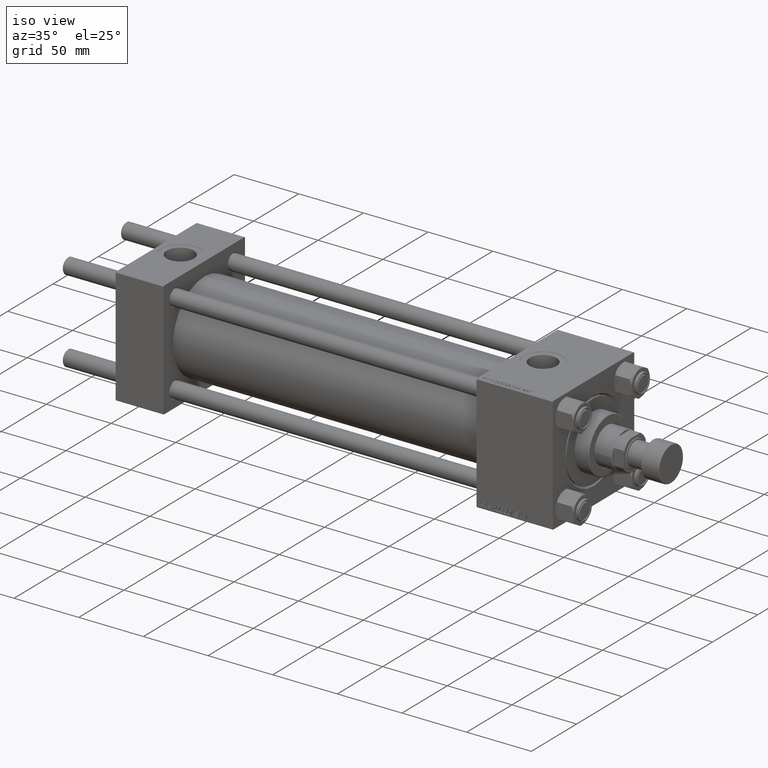
[diagram: clean part render]
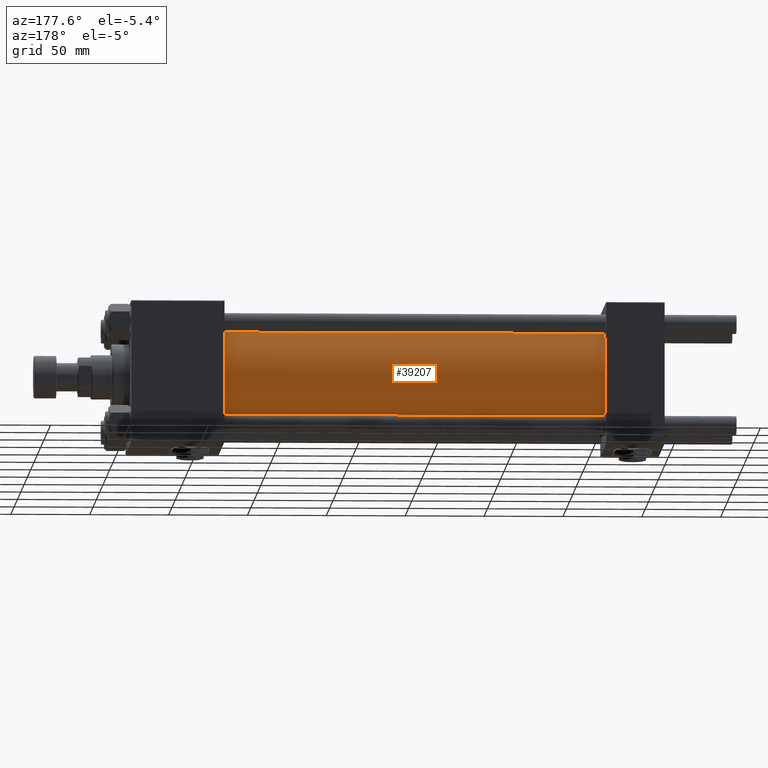
[diagram: tour spotlight — one face highlighted and labeled with its STEP entity id]
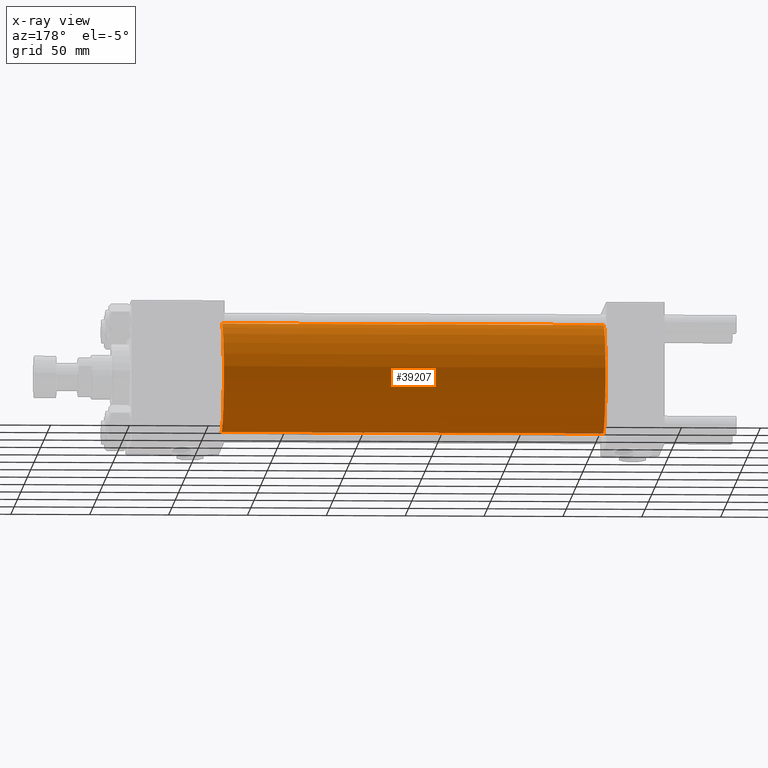
[diagram: x-ray of the same camera — body ghosted, this tour face saturated]
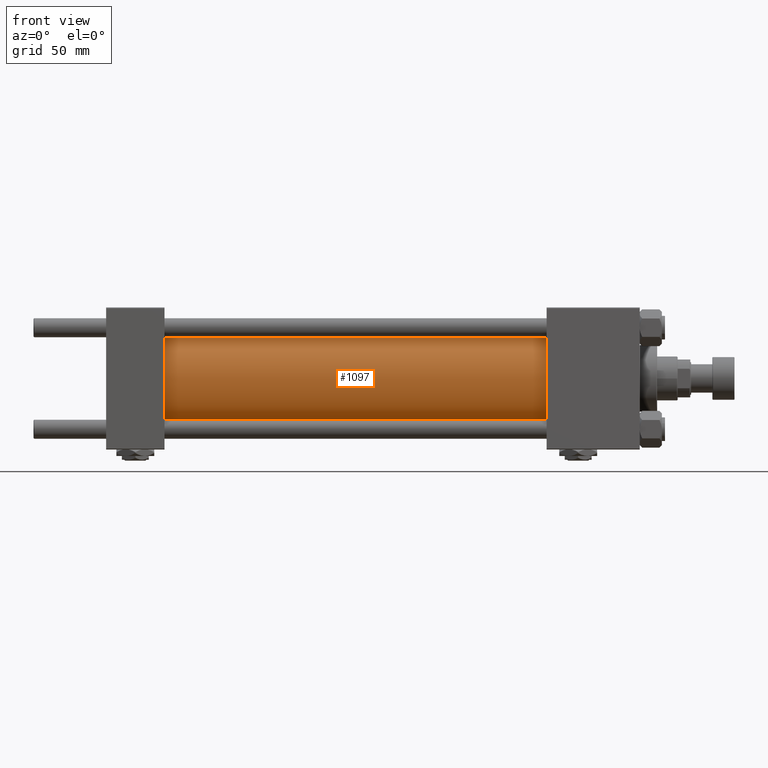
[diagram: tour spotlight — one face highlighted and labeled with its STEP entity id]
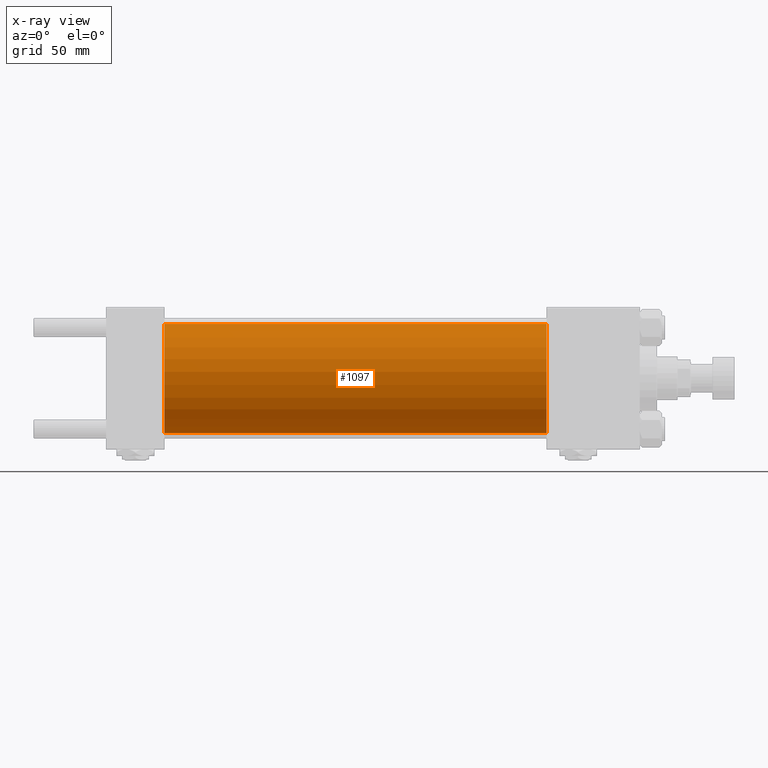
[diagram: x-ray of the same camera — body ghosted, this tour face saturated]
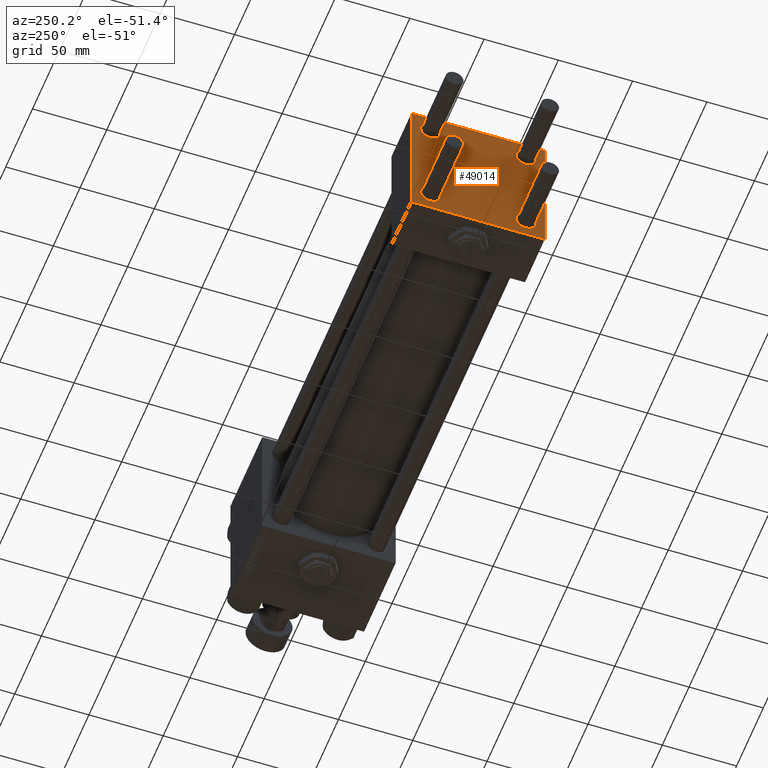
[diagram: tour spotlight — one face highlighted and labeled with its STEP entity id]
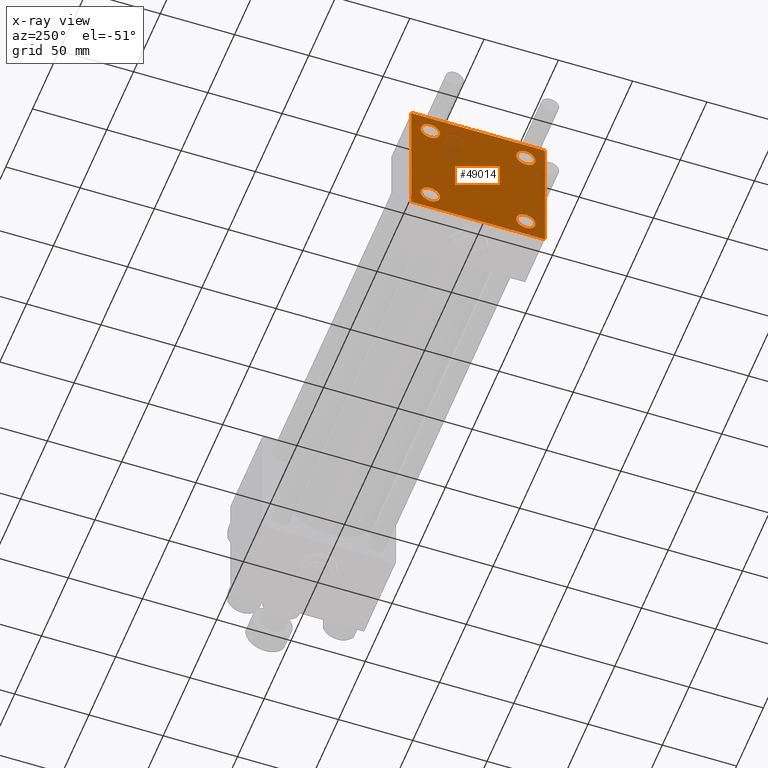
[diagram: x-ray of the same camera — body ghosted, this tour face saturated]
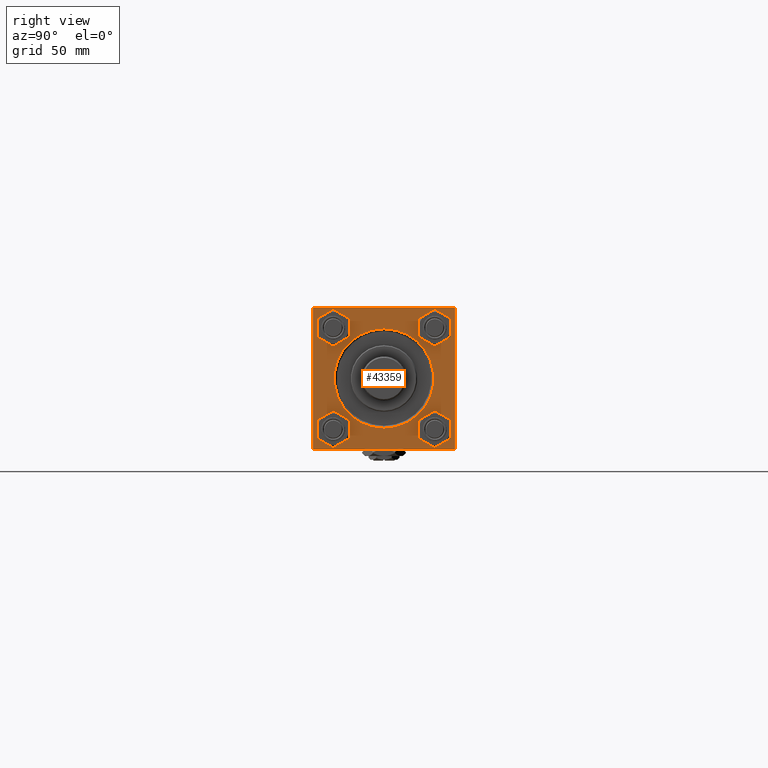
[diagram: tour spotlight — one face highlighted and labeled with its STEP entity id]
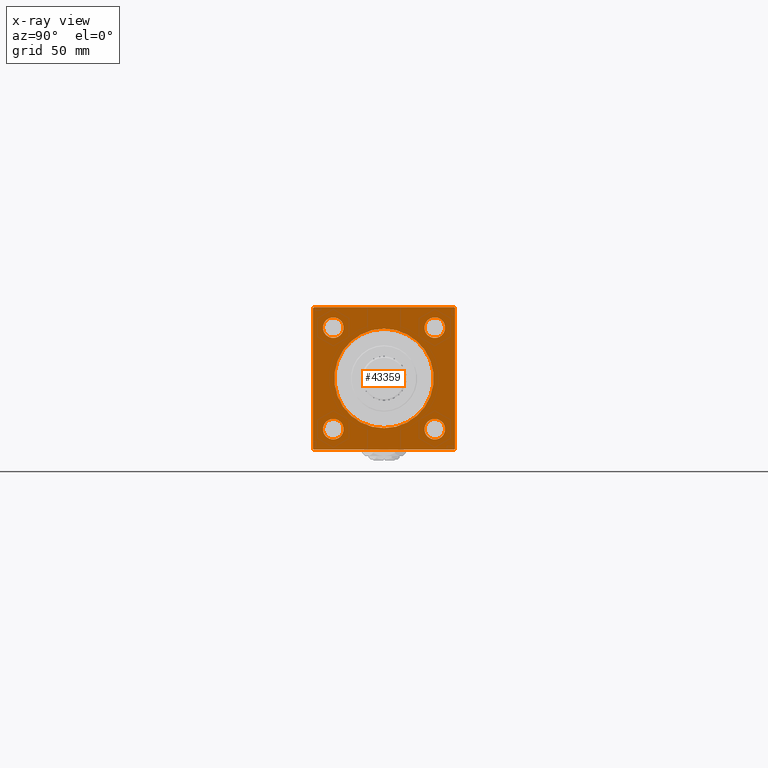
[diagram: x-ray of the same camera — body ghosted, this tour face saturated]
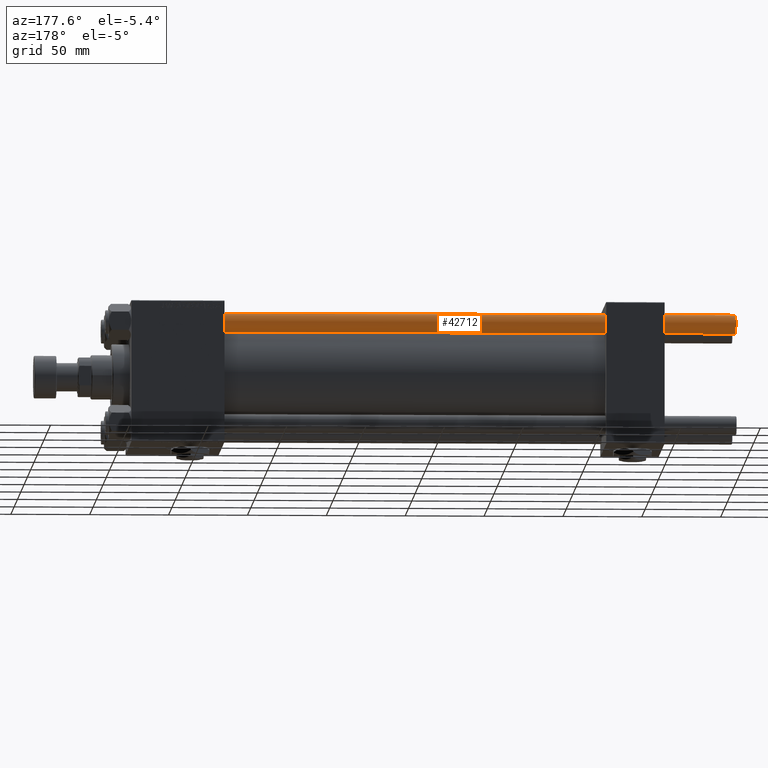
[diagram: tour spotlight — one face highlighted and labeled with its STEP entity id]
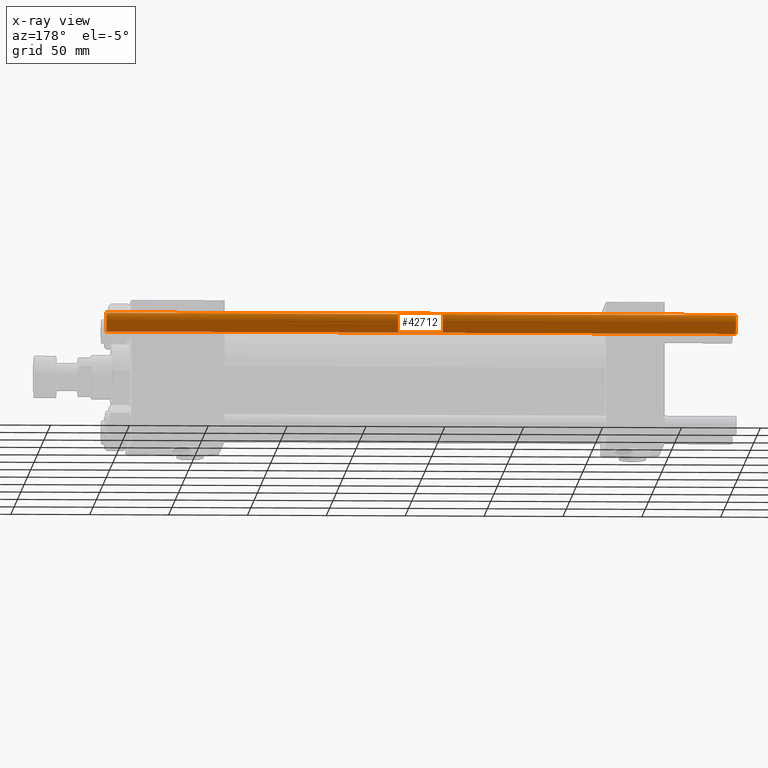
[diagram: x-ray of the same camera — body ghosted, this tour face saturated]
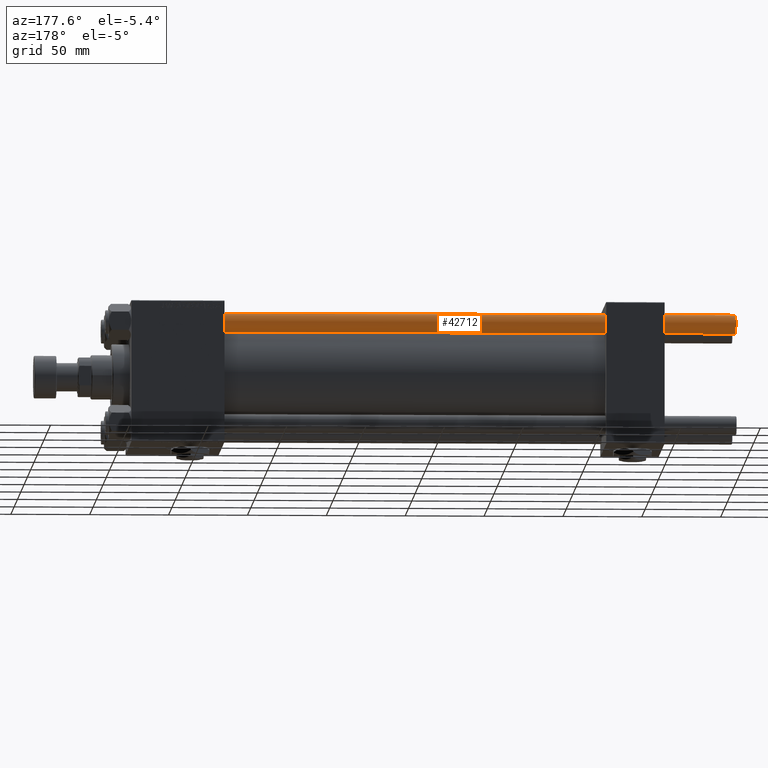
[diagram: tour spotlight — one face highlighted and labeled with its STEP entity id]
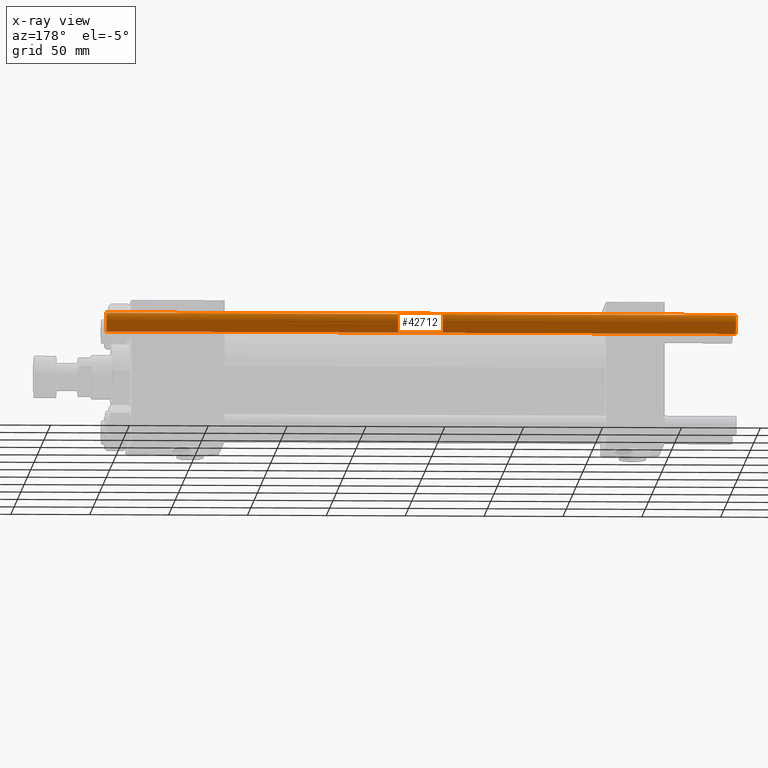
[diagram: x-ray of the same camera — body ghosted, this tour face saturated]
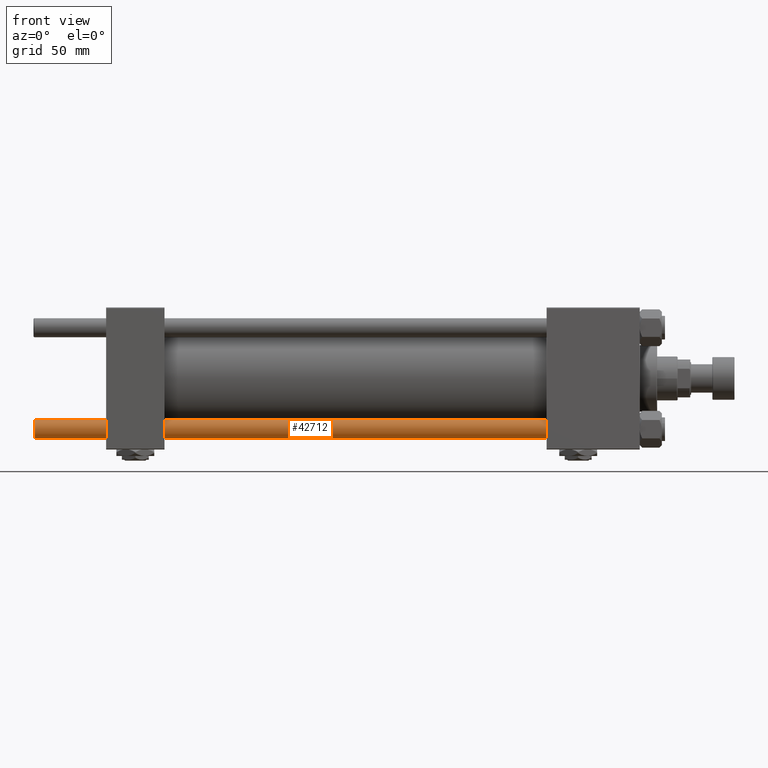
[diagram: tour spotlight — one face highlighted and labeled with its STEP entity id]
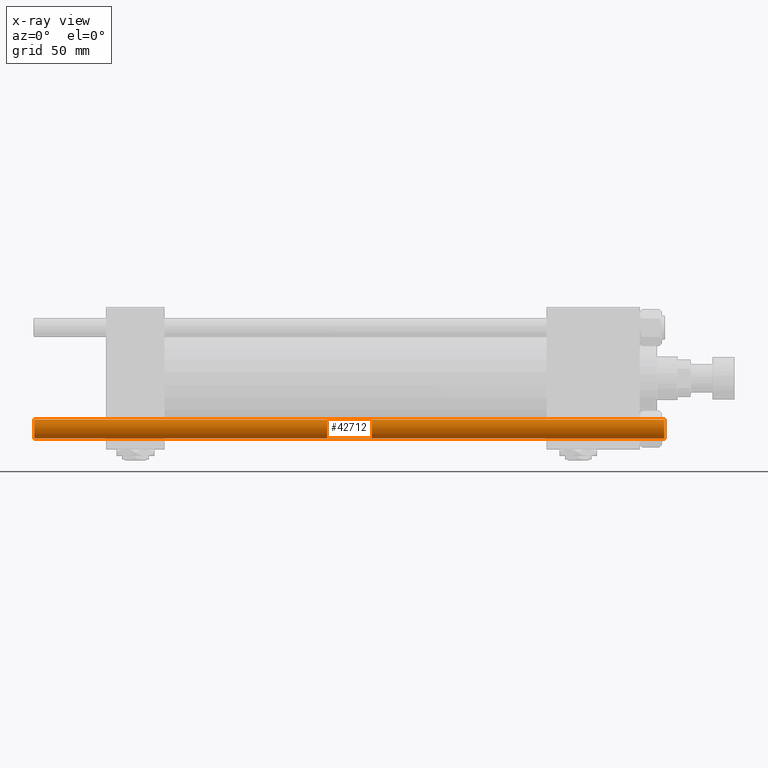
[diagram: x-ray of the same camera — body ghosted, this tour face saturated]
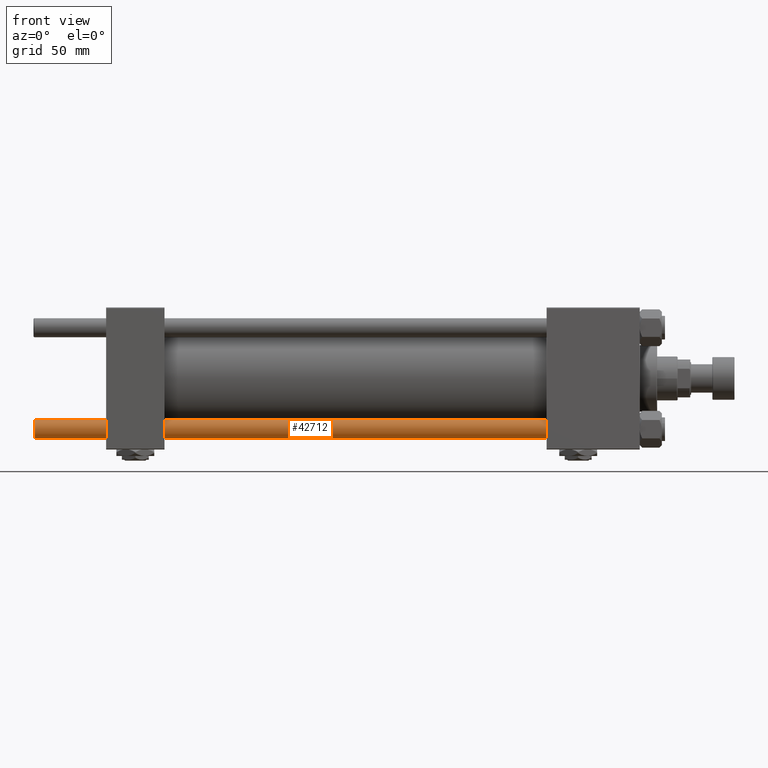
[diagram: tour spotlight — one face highlighted and labeled with its STEP entity id]
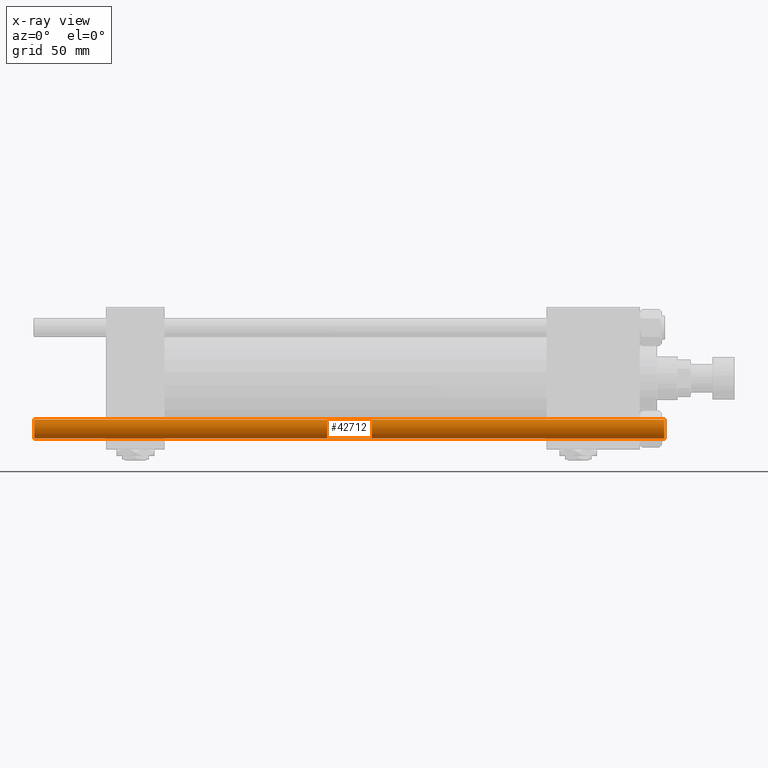
[diagram: x-ray of the same camera — body ghosted, this tour face saturated]
A machine part: a face-by-face anatomy tour. The part has 1247 B-rep faces; the first image is the clean iso view, then the 8 largest visible faces are spotlighted one at a time (largest first), each with its STEP entity span.

Face 1 — auxiliary view, entity #39207. An x-ray twin of the same camera follows (body ghosted, this face saturated) — the face is partly hidden behind the body. In plain terms, the highlighted cylindrical surface (partial cylindrical patch) has radius 34.5 mm, axis along (-1, -0, -0).
Definition (entity closure, byte-faithful):
#1238 = VECTOR ( 'NONE', #6435, 1000.000000000000000 ) ;
#1701 = AXIS2_PLACEMENT_3D ( 'NONE', #14619, #46877, #10649 ) ;
#2493 = VERTEX_POINT ( 'NONE', #27217 ) ;
#4781 = VERTEX_POINT ( 'NONE', #30651 ) ;
#6435 = DIRECTION ( 'NONE',  ( -1.000000000000000000, -0.000000000000000000, -0.000000000000000000 ) ) ;
#7127 = ORIENTED_EDGE ( 'NONE', *, *, #44921, .F. ) ;
#9409 = ORIENTED_EDGE ( 'NONE', *, *, #27478, .F. ) ;
#9705 = VECTOR ( 'NONE', #35653, 1000.000000000000000 ) ;
#10195 = DIRECTION ( 'NONE',  ( 1.000000000000000000, -0.000000000000000000, 0.000000000000000000 ) ) ;
#10649 = DIRECTION ( 'NONE',  ( 0.000000000000000000, 0.000000000000000000, -1.000000000000000000 ) ) ;
#11301 = ORIENTED_EDGE ( 'NONE', *, *, #41979, .T. ) ;
#11334 = CARTESIAN_POINT ( 'NONE',  ( 37.00000000000000711, 4.225031457058367344E-15, -34.49999999999999289 ) ) ;
#12838 = CARTESIAN_POINT ( 'NONE',  ( 278.9999999999999432, 4.225031457058367344E-15, -34.49999999999999289 ) ) ;
#13333 = DIRECTION ( 'NONE',  ( 0.000000000000000000, 0.000000000000000000, 1.000000000000000000 ) ) ;
#14153 = CARTESIAN_POINT ( 'NONE',  ( 37.00000000000000711, 0.000000000000000000, 0.000000000000000000 ) ) ;
#14619 = CARTESIAN_POINT ( 'NONE',  ( 278.9999999999999432, 0.000000000000000000, 0.000000000000000000 ) ) ;
#15557 = CARTESIAN_POINT ( 'NONE',  ( 278.9999999999999432, 4.225031457058367344E-15, -34.49999999999999289 ) ) ;
#18596 = CIRCLE ( 'NONE', #1701, 34.49999999999999289 ) ;
#18634 = LINE ( 'NONE', #37945, #1238 ) ;
#22575 = FACE_OUTER_BOUND ( 'NONE', #31577, .T. ) ;
#22686 = VERTEX_POINT ( 'NONE', #11334 ) ;
#27191 = CIRCLE ( 'NONE', #39014, 34.49999999999999289 ) ;
#27217 = CARTESIAN_POINT ( 'NONE',  ( 37.00000000000000711, 0.000000000000000000, 34.49999999999999289 ) ) ;
#27478 = EDGE_CURVE ( 'NONE', #42775, #4781, #18596, .T. ) ;
#30651 = CARTESIAN_POINT ( 'NONE',  ( 278.9999999999999432, 0.000000000000000000, 34.49999999999999289 ) ) ;
#31577 = EDGE_LOOP ( 'NONE', ( #9409, #11301, #32504, #7127 ) ) ;
#32417 = AXIS2_PLACEMENT_3D ( 'NONE', #33435, #49567, #13333 ) ;
#32504 = ORIENTED_EDGE ( 'NONE', *, *, #33988, .T. ) ;
#33435 = CARTESIAN_POINT ( 'NONE',  ( 278.9999999999999432, 0.000000000000000000, 0.000000000000000000 ) ) ;
#33988 = EDGE_CURVE ( 'NONE', #22686, #2493, #27191, .T. ) ;
#35653 = DIRECTION ( 'NONE',  ( -1.000000000000000000, -0.000000000000000000, -0.000000000000000000 ) ) ;
#37945 = CARTESIAN_POINT ( 'NONE',  ( 278.9999999999999432, 0.000000000000000000, 34.49999999999999289 ) ) ;
#38239 = DIRECTION ( 'NONE',  ( 0.000000000000000000, 0.000000000000000000, 1.000000000000000000 ) ) ;
#38708 = CYLINDRICAL_SURFACE ( 'NONE', #32417, 34.49999999999999289 ) ;
#39014 = AXIS2_PLACEMENT_3D ( 'NONE', #14153, #10195, #38239 ) ;
#39207 = ADVANCED_FACE ( 'NONE', ( #22575 ), #38708, .T. ) ;
#41979 = EDGE_CURVE ( 'NONE', #42775, #22686, #44123, .T. ) ;
#42775 = VERTEX_POINT ( 'NONE', #12838 ) ;
#44123 = LINE ( 'NONE', #15557, #9705 ) ;
#44921 = EDGE_CURVE ( 'NONE', #4781, #2493, #18634, .T. ) ;
#46877 = DIRECTION ( 'NONE',  ( 1.000000000000000000, 0.000000000000000000, 0.000000000000000000 ) ) ;
#49567 = DIRECTION ( 'NONE',  ( -1.000000000000000000, -0.000000000000000000, -0.000000000000000000 ) ) ;

Face 2 — front view, entity #1097. An x-ray twin of the same camera follows (body ghosted, this face saturated) — the face is partly hidden behind the body. In plain terms, the highlighted cylindrical surface (partial cylindrical patch) has radius 34.5 mm, axis along (-1, -0, -0).
Definition (entity closure, byte-faithful):
#1097 = ADVANCED_FACE ( 'NONE', ( #32298 ), #11948, .T. ) ;
#1238 = VECTOR ( 'NONE', #6435, 1000.000000000000000 ) ;
#1397 = CARTESIAN_POINT ( 'NONE',  ( 278.9999999999999432, 0.000000000000000000, 0.000000000000000000 ) ) ;
#2493 = VERTEX_POINT ( 'NONE', #27217 ) ;
#4781 = VERTEX_POINT ( 'NONE', #30651 ) ;
#5101 = DIRECTION ( 'NONE',  ( 1.000000000000000000, 0.000000000000000000, 0.000000000000000000 ) ) ;
#6435 = DIRECTION ( 'NONE',  ( -1.000000000000000000, -0.000000000000000000, -0.000000000000000000 ) ) ;
#9705 = VECTOR ( 'NONE', #35653, 1000.000000000000000 ) ;
#11334 = CARTESIAN_POINT ( 'NONE',  ( 37.00000000000000711, 4.225031457058367344E-15, -34.49999999999999289 ) ) ;
#11948 = CYLINDRICAL_SURFACE ( 'NONE', #27611, 34.49999999999999289 ) ;
#12838 = CARTESIAN_POINT ( 'NONE',  ( 278.9999999999999432, 4.225031457058367344E-15, -34.49999999999999289 ) ) ;
#13193 = EDGE_LOOP ( 'NONE', ( #51564, #16017, #51221, #27031 ) ) ;
#14505 = AXIS2_PLACEMENT_3D ( 'NONE', #49873, #37719, #21845 ) ;
#15557 = CARTESIAN_POINT ( 'NONE',  ( 278.9999999999999432, 4.225031457058367344E-15, -34.49999999999999289 ) ) ;
#16017 = ORIENTED_EDGE ( 'NONE', *, *, #31632, .F. ) ;
#17555 = DIRECTION ( 'NONE',  ( 0.000000000000000000, 0.000000000000000000, -1.000000000000000000 ) ) ;
#17767 = AXIS2_PLACEMENT_3D ( 'NONE', #1397, #5101, #17555 ) ;
#18634 = LINE ( 'NONE', #37945, #1238 ) ;
#21845 = DIRECTION ( 'NONE',  ( 0.000000000000000000, 0.000000000000000000, 1.000000000000000000 ) ) ;
#22686 = VERTEX_POINT ( 'NONE', #11334 ) ;
#27031 = ORIENTED_EDGE ( 'NONE', *, *, #34015, .T. ) ;
#27217 = CARTESIAN_POINT ( 'NONE',  ( 37.00000000000000711, 0.000000000000000000, 34.49999999999999289 ) ) ;
#27611 = AXIS2_PLACEMENT_3D ( 'NONE', #28866, #44228, #41031 ) ;
#28866 = CARTESIAN_POINT ( 'NONE',  ( 278.9999999999999432, 0.000000000000000000, 0.000000000000000000 ) ) ;
#30651 = CARTESIAN_POINT ( 'NONE',  ( 278.9999999999999432, 0.000000000000000000, 34.49999999999999289 ) ) ;
#31632 = EDGE_CURVE ( 'NONE', #4781, #42775, #40555, .T. ) ;
#32298 = FACE_OUTER_BOUND ( 'NONE', #13193, .T. ) ;
#34015 = EDGE_CURVE ( 'NONE', #2493, #22686, #37314, .T. ) ;
#35653 = DIRECTION ( 'NONE',  ( -1.000000000000000000, -0.000000000000000000, -0.000000000000000000 ) ) ;
#37314 = CIRCLE ( 'NONE', #14505, 34.49999999999999289 ) ;
#37719 = DIRECTION ( 'NONE',  ( 1.000000000000000000, -0.000000000000000000, 0.000000000000000000 ) ) ;
#37945 = CARTESIAN_POINT ( 'NONE',  ( 278.9999999999999432, 0.000000000000000000, 34.49999999999999289 ) ) ;
#40555 = CIRCLE ( 'NONE', #17767, 34.49999999999999289 ) ;
#41031 = DIRECTION ( 'NONE',  ( 0.000000000000000000, 0.000000000000000000, 1.000000000000000000 ) ) ;
#41979 = EDGE_CURVE ( 'NONE', #42775, #22686, #44123, .T. ) ;
#42775 = VERTEX_POINT ( 'NONE', #12838 ) ;
#44123 = LINE ( 'NONE', #15557, #9705 ) ;
#44228 = DIRECTION ( 'NONE',  ( -1.000000000000000000, -0.000000000000000000, -0.000000000000000000 ) ) ;
#44921 = EDGE_CURVE ( 'NONE', #4781, #2493, #18634, .T. ) ;
#49873 = CARTESIAN_POINT ( 'NONE',  ( 37.00000000000000711, 0.000000000000000000, 0.000000000000000000 ) ) ;
#51221 = ORIENTED_EDGE ( 'NONE', *, *, #44921, .T. ) ;
#51564 = ORIENTED_EDGE ( 'NONE', *, *, #41979, .F. ) ;

Face 3 — auxiliary view, entity #49014. An x-ray twin of the same camera follows (body ghosted, this face saturated) — the face is partly hidden behind the body. In plain terms, the highlighted planar face has unit normal (-1, 0, 0).
Definition (entity closure, byte-faithful):
#23 = CARTESIAN_POINT ( 'NONE',  ( 0.000000000000000000, 32.14999999999999147, -32.15000000000000568 ) ) ;
#322 = AXIS2_PLACEMENT_3D ( 'NONE', #24328, #40461, #770 ) ;
#585 = ORIENTED_EDGE ( 'NONE', *, *, #8878, .T. ) ;
#770 = DIRECTION ( 'NONE',  ( 0.000000000000000000, 0.000000000000000000, 1.000000000000000000 ) ) ;
#1209 = DIRECTION ( 'NONE',  ( 0.000000000000000000, 0.000000000000000000, 1.000000000000000000 ) ) ;
#1324 = EDGE_CURVE ( 'NONE', #40940, #44435, #34386, .T. ) ;
#1410 = VERTEX_POINT ( 'NONE', #41726 ) ;
#1665 = LINE ( 'NONE', #34721, #40408 ) ;
#1736 = LINE ( 'NONE', #17894, #41706 ) ;
#2751 = LINE ( 'NONE', #22871, #35495 ) ;
#2802 = AXIS2_PLACEMENT_3D ( 'NONE', #23656, #39789, #23134 ) ;
#2902 = ORIENTED_EDGE ( 'NONE', *, *, #27610, .T. ) ;
#3375 = EDGE_CURVE ( 'NONE', #31960, #24763, #33337, .T. ) ;
#3716 = DIRECTION ( 'NONE',  ( 1.000000000000000000, -0.000000000000000000, 0.000000000000000000 ) ) ;
#4031 = CIRCLE ( 'NONE', #33610, 6.500000000000019540 ) ;
#4152 = CARTESIAN_POINT ( 'NONE',  ( 0.000000000000000000, -44.49999999999995737, -45.00000000000000000 ) ) ;
#4788 = CIRCLE ( 'NONE', #34360, 6.499999999999977796 ) ;
#4977 = CARTESIAN_POINT ( 'NONE',  ( 0.000000000000000000, 44.74999999999999289, 44.74999999999999289 ) ) ;
#5029 = DIRECTION ( 'NONE',  ( 0.000000000000000000, -1.000000000000000000, -1.541976423090495633E-16 ) ) ;
#5430 = DIRECTION ( 'NONE',  ( 1.000000000000000000, -0.000000000000000000, 0.000000000000000000 ) ) ;
#5577 = EDGE_LOOP ( 'NONE', ( #41072, #25094 ) ) ;
#5890 = DIRECTION ( 'NONE',  ( 1.000000000000000000, -0.000000000000000000, 0.000000000000000000 ) ) ;
#6821 = AXIS2_PLACEMENT_3D ( 'NONE', #23, #16180, #32293 ) ;
#7508 = FACE_OUTER_BOUND ( 'NONE', #32414, .T. ) ;
#7723 = CARTESIAN_POINT ( 'NONE',  ( 0.000000000000000000, -45.00000000000000000, -44.49999999999995737 ) ) ;
#8689 = CARTESIAN_POINT ( 'NONE',  ( 0.000000000000000000, 44.49999999999998579, 45.00000000000001421 ) ) ;
#8878 = EDGE_CURVE ( 'NONE', #48772, #19378, #1665, .T. ) ;
#8956 = EDGE_CURVE ( 'NONE', #16682, #32680, #10017, .T. ) ;
#9024 = CARTESIAN_POINT ( 'NONE',  ( -0.000000000000000000, -44.75000000000029843, 44.74999999999967315 ) ) ;
#9371 = CIRCLE ( 'NONE', #6821, 6.499999999999977796 ) ;
#9758 = DIRECTION ( 'NONE',  ( -0.000000000000000000, -0.7071067811865474617, -0.7071067811865474617 ) ) ;
#10017 = CIRCLE ( 'NONE', #42149, 6.499999999999977796 ) ;
#10515 = VECTOR ( 'NONE', #37266, 1000.000000000000114 ) ;
#10971 = CARTESIAN_POINT ( 'NONE',  ( 0.000000000000000000, 44.99999999999998579, -44.49999999999995737 ) ) ;
#11121 = ORIENTED_EDGE ( 'NONE', *, *, #47633, .T. ) ;
#11231 = PLANE ( 'NONE',  #2802 ) ;
#12229 = CARTESIAN_POINT ( 'NONE',  ( 0.000000000000000000, -32.14999999999997726, -38.64999999999999147 ) ) ;
#12448 = ORIENTED_EDGE ( 'NONE', *, *, #19070, .T. ) ;
#12656 = VECTOR ( 'NONE', #27563, 1000.000000000000114 ) ;
#12905 = VERTEX_POINT ( 'NONE', #42650 ) ;
#13901 = DIRECTION ( 'NONE',  ( 0.000000000000000000, 0.000000000000000000, 1.000000000000000000 ) ) ;
#14676 = FACE_BOUND ( 'NONE', #16792, .T. ) ;
#15014 = DIRECTION ( 'NONE',  ( 0.000000000000000000, 0.000000000000000000, 1.000000000000000000 ) ) ;
#15041 = CARTESIAN_POINT ( 'NONE',  ( 0.000000000000000000, -32.14999999999997726, 32.15000000000001279 ) ) ;
#15240 = EDGE_CURVE ( 'NONE', #35460, #34101, #20368, .T. ) ;
#15352 = VERTEX_POINT ( 'NONE', #45059 ) ;
#16180 = DIRECTION ( 'NONE',  ( 1.000000000000000000, -0.000000000000000000, 0.000000000000000000 ) ) ;
#16682 = VERTEX_POINT ( 'NONE', #41764 ) ;
#16695 = EDGE_CURVE ( 'NONE', #19378, #31960, #21154, .T. ) ;
#16792 = EDGE_LOOP ( 'NONE', ( #12448, #52126 ) ) ;
#17884 = CARTESIAN_POINT ( 'NONE',  ( 0.000000000000000000, -32.14999999999997726, -32.15000000000001279 ) ) ;
#17894 = CARTESIAN_POINT ( 'NONE',  ( 0.000000000000000000, 44.99999999999998579, 45.00000000000001421 ) ) ;
#18569 = EDGE_LOOP ( 'NONE', ( #20387, #27068 ) ) ;
#18652 = DIRECTION ( 'NONE',  ( 0.000000000000000000, 7.709882115452476934E-17, -1.000000000000000000 ) ) ;
#18867 = CARTESIAN_POINT ( 'NONE',  ( 0.000000000000000000, 32.14999999999999147, 32.15000000000000568 ) ) ;
#18942 = VERTEX_POINT ( 'NONE', #8689 ) ;
#19070 = EDGE_CURVE ( 'NONE', #32680, #16682, #4788, .T. ) ;
#19378 = VERTEX_POINT ( 'NONE', #10971 ) ;
#19544 = DIRECTION ( 'NONE',  ( 1.000000000000000000, -0.000000000000000000, 0.000000000000000000 ) ) ;
#20368 = CIRCLE ( 'NONE', #25458, 6.499999999999977796 ) ;
#20387 = ORIENTED_EDGE ( 'NONE', *, *, #21863, .T. ) ;
#21154 = LINE ( 'NONE', #38323, #26357 ) ;
#21280 = AXIS2_PLACEMENT_3D ( 'NONE', #17884, #5430, #13901 ) ;
#21863 = EDGE_CURVE ( 'NONE', #15352, #39930, #4031, .T. ) ;
#22871 = CARTESIAN_POINT ( 'NONE',  ( 0.000000000000000000, -45.00000000000000711, 45.00000000000000000 ) ) ;
#23055 = CIRCLE ( 'NONE', #33995, 6.499999999999977796 ) ;
#23134 = DIRECTION ( 'NONE',  ( -0.000000000000000000, 0.000000000000000000, 1.000000000000000000 ) ) ;
#23578 = CARTESIAN_POINT ( 'NONE',  ( 0.000000000000000000, 32.14999999999999147, -32.15000000000000568 ) ) ;
#23656 = CARTESIAN_POINT ( 'NONE',  ( 0.000000000000000000, 0.000000000000000000, 0.000000000000000000 ) ) ;
#24328 = CARTESIAN_POINT ( 'NONE',  ( 0.000000000000000000, -32.14999999999997726, 32.15000000000001279 ) ) ;
#24353 = ORIENTED_EDGE ( 'NONE', *, *, #1324, .T. ) ;
#24763 = VERTEX_POINT ( 'NONE', #4152 ) ;
#25084 = VECTOR ( 'NONE', #25156, 1000.000000000000114 ) ;
#25094 = ORIENTED_EDGE ( 'NONE', *, *, #15240, .T. ) ;
#25156 = DIRECTION ( 'NONE',  ( -0.000000000000000000, 0.7071067811865425767, 0.7071067811865524577 ) ) ;
#25359 = ORIENTED_EDGE ( 'NONE', *, *, #3375, .T. ) ;
#25458 = AXIS2_PLACEMENT_3D ( 'NONE', #29766, #42717, #1209 ) ;
#25665 = CARTESIAN_POINT ( 'NONE',  ( 0.000000000000000000, 44.99999999999998579, -44.99999999999998579 ) ) ;
#26004 = DIRECTION ( 'NONE',  ( 0.000000000000000000, 0.000000000000000000, 1.000000000000000000 ) ) ;
#26357 = VECTOR ( 'NONE', #9758, 1000.000000000000114 ) ;
#26573 = FACE_BOUND ( 'NONE', #5577, .T. ) ;
#27068 = ORIENTED_EDGE ( 'NONE', *, *, #39774, .T. ) ;
#27128 = CARTESIAN_POINT ( 'NONE',  ( 0.000000000000000000, -45.00000000000000711, 44.49999999999997158 ) ) ;
#27175 = CARTESIAN_POINT ( 'NONE',  ( 0.000000000000000000, 32.14999999999999147, 32.15000000000000568 ) ) ;
#27563 = DIRECTION ( 'NONE',  ( 0.000000000000000000, -0.7071067811865474617, 0.7071067811865474617 ) ) ;
#27610 = EDGE_CURVE ( 'NONE', #24763, #28541, #51359, .T. ) ;
#27805 = DIRECTION ( 'NONE',  ( 0.000000000000000000, 0.000000000000000000, 1.000000000000000000 ) ) ;
#28541 = VERTEX_POINT ( 'NONE', #7723 ) ;
#28672 = ORIENTED_EDGE ( 'NONE', *, *, #16695, .T. ) ;
#29766 = CARTESIAN_POINT ( 'NONE',  ( 0.000000000000000000, -32.14999999999997726, -32.15000000000001279 ) ) ;
#31256 = CARTESIAN_POINT ( 'NONE',  ( 0.000000000000000000, -44.74999999999998579, -44.74999999999998579 ) ) ;
#31368 = EDGE_CURVE ( 'NONE', #40940, #28541, #2751, .T. ) ;
#31387 = DIRECTION ( 'NONE',  ( 1.000000000000000000, -0.000000000000000000, 0.000000000000000000 ) ) ;
#31599 = ORIENTED_EDGE ( 'NONE', *, *, #31368, .F. ) ;
#31860 = EDGE_CURVE ( 'NONE', #12905, #1410, #9371, .T. ) ;
#31960 = VERTEX_POINT ( 'NONE', #41810 ) ;
#32293 = DIRECTION ( 'NONE',  ( 0.000000000000000000, 0.000000000000000000, 1.000000000000000000 ) ) ;
#32414 = EDGE_LOOP ( 'NONE', ( #585, #28672, #25359, #2902, #31599, #24353, #48103, #48736 ) ) ;
#32680 = VERTEX_POINT ( 'NONE', #41206 ) ;
#33337 = LINE ( 'NONE', #25665, #47084 ) ;
#33610 = AXIS2_PLACEMENT_3D ( 'NONE', #15041, #19544, #43341 ) ;
#33976 = EDGE_CURVE ( 'NONE', #34101, #35460, #51652, .T. ) ;
#33995 = AXIS2_PLACEMENT_3D ( 'NONE', #23578, #3716, #27805 ) ;
#34101 = VERTEX_POINT ( 'NONE', #46939 ) ;
#34360 = AXIS2_PLACEMENT_3D ( 'NONE', #27175, #31387, #15014 ) ;
#34386 = LINE ( 'NONE', #9024, #25084 ) ;
#34721 = CARTESIAN_POINT ( 'NONE',  ( 0.000000000000000000, 44.99999999999998579, 45.00000000000001421 ) ) ;
#35035 = FACE_BOUND ( 'NONE', #42009, .T. ) ;
#35460 = VERTEX_POINT ( 'NONE', #12229 ) ;
#35495 = VECTOR ( 'NONE', #18652, 1000.000000000000000 ) ;
#37266 = DIRECTION ( 'NONE',  ( 0.000000000000000000, 0.7071067811865474617, -0.7071067811865474617 ) ) ;
#38323 = CARTESIAN_POINT ( 'NONE',  ( 0.000000000000000000, 44.74999999999998579, -44.74999999999998579 ) ) ;
#39403 = CARTESIAN_POINT ( 'NONE',  ( 0.000000000000000000, 44.99999999999998579, 44.50000000000001421 ) ) ;
#39774 = EDGE_CURVE ( 'NONE', #39930, #15352, #50174, .T. ) ;
#39789 = DIRECTION ( 'NONE',  ( -1.000000000000000000, 0.000000000000000000, -0.000000000000000000 ) ) ;
#39930 = VERTEX_POINT ( 'NONE', #44375 ) ;
#40408 = VECTOR ( 'NONE', #51109, 1000.000000000000000 ) ;
#40461 = DIRECTION ( 'NONE',  ( 1.000000000000000000, -0.000000000000000000, 0.000000000000000000 ) ) ;
#40940 = VERTEX_POINT ( 'NONE', #27128 ) ;
#41072 = ORIENTED_EDGE ( 'NONE', *, *, #33976, .T. ) ;
#41206 = CARTESIAN_POINT ( 'NONE',  ( 0.000000000000000000, 32.14999999999999147, 38.64999999999999147 ) ) ;
#41706 = VECTOR ( 'NONE', #41952, 1000.000000000000000 ) ;
#41726 = CARTESIAN_POINT ( 'NONE',  ( 0.000000000000000000, 32.14999999999999147, -38.64999999999998437 ) ) ;
#41764 = CARTESIAN_POINT ( 'NONE',  ( 0.000000000000000000, 32.14999999999999147, 25.65000000000002700 ) ) ;
#41810 = CARTESIAN_POINT ( 'NONE',  ( 0.000000000000000000, 44.49999999999998579, -44.99999999999998579 ) ) ;
#41952 = DIRECTION ( 'NONE',  ( 0.000000000000000000, -1.000000000000000000, -1.541976423090495387E-16 ) ) ;
#42009 = EDGE_LOOP ( 'NONE', ( #51547, #11121 ) ) ;
#42149 = AXIS2_PLACEMENT_3D ( 'NONE', #18867, #5890, #26004 ) ;
#42650 = CARTESIAN_POINT ( 'NONE',  ( 0.000000000000000000, 32.14999999999999147, -25.65000000000002700 ) ) ;
#42717 = DIRECTION ( 'NONE',  ( 1.000000000000000000, -0.000000000000000000, 0.000000000000000000 ) ) ;
#43341 = DIRECTION ( 'NONE',  ( 0.000000000000000000, 0.000000000000000000, 1.000000000000000000 ) ) ;
#44375 = CARTESIAN_POINT ( 'NONE',  ( 0.000000000000000000, -32.14999999999997726, 25.64999999999999147 ) ) ;
#44435 = VERTEX_POINT ( 'NONE', #48667 ) ;
#45059 = CARTESIAN_POINT ( 'NONE',  ( 0.000000000000000000, -32.14999999999997726, 38.65000000000003411 ) ) ;
#45980 = LINE ( 'NONE', #4977, #10515 ) ;
#46939 = CARTESIAN_POINT ( 'NONE',  ( 0.000000000000000000, -32.14999999999997726, -25.65000000000003411 ) ) ;
#47084 = VECTOR ( 'NONE', #5029, 1000.000000000000000 ) ;
#47452 = FACE_BOUND ( 'NONE', #18569, .T. ) ;
#47633 = EDGE_CURVE ( 'NONE', #1410, #12905, #23055, .T. ) ;
#48103 = ORIENTED_EDGE ( 'NONE', *, *, #50228, .F. ) ;
#48667 = CARTESIAN_POINT ( 'NONE',  ( 0.000000000000000000, -44.49999999999995737, 45.00000000000000000 ) ) ;
#48736 = ORIENTED_EDGE ( 'NONE', *, *, #52325, .T. ) ;
#48772 = VERTEX_POINT ( 'NONE', #39403 ) ;
#49014 = ADVANCED_FACE ( 'NONE', ( #47452, #26573, #35035, #14676, #7508 ), #11231, .T. ) ;
#50174 = CIRCLE ( 'NONE', #322, 6.500000000000019540 ) ;
#50228 = EDGE_CURVE ( 'NONE', #18942, #44435, #1736, .T. ) ;
#51109 = DIRECTION ( 'NONE',  ( 0.000000000000000000, 0.000000000000000000, -1.000000000000000000 ) ) ;
#51359 = LINE ( 'NONE', #31256, #12656 ) ;
#51547 = ORIENTED_EDGE ( 'NONE', *, *, #31860, .T. ) ;
#51652 = CIRCLE ( 'NONE', #21280, 6.499999999999977796 ) ;
#52126 = ORIENTED_EDGE ( 'NONE', *, *, #8956, .T. ) ;
#52325 = EDGE_CURVE ( 'NONE', #18942, #48772, #45980, .T. ) ;

Face 4 — right view, entity #43359. An x-ray twin of the same camera follows (body ghosted, this face saturated) — the face is partly hidden behind the body. In plain terms, the highlighted planar face has unit normal (-1, 0, 0).
Definition (entity closure, byte-faithful):
#194 = VECTOR ( 'NONE', #12519, 999.9999999999998863 ) ;
#378 = ORIENTED_EDGE ( 'NONE', *, *, #28123, .T. ) ;
#1820 = FACE_BOUND ( 'NONE', #40671, .T. ) ;
#2013 = CIRCLE ( 'NONE', #7946, 6.500000000000005329 ) ;
#2173 = VERTEX_POINT ( 'NONE', #14329 ) ;
#2364 = CARTESIAN_POINT ( 'NONE',  ( 337.9999999999999432, -45.00000000000000000, 44.99999999999998579 ) ) ;
#2375 = ORIENTED_EDGE ( 'NONE', *, *, #41245, .T. ) ;
#2411 = VERTEX_POINT ( 'NONE', #5541 ) ;
#2546 = EDGE_CURVE ( 'NONE', #2411, #46498, #47311, .T. ) ;
#3049 = DIRECTION ( 'NONE',  ( -0.000000000000000000, 0.7071067811865474617, 0.7071067811865474617 ) ) ;
#3152 = EDGE_LOOP ( 'NONE', ( #2375, #42779 ) ) ;
#3738 = VECTOR ( 'NONE', #9220, 1000.000000000000000 ) ;
#4073 = VECTOR ( 'NONE', #48211, 1000.000000000000000 ) ;
#4167 = CARTESIAN_POINT ( 'NONE',  ( 337.9999999999999432, 32.14999999999999147, 32.15000000000000568 ) ) ;
#4264 = CARTESIAN_POINT ( 'NONE',  ( 337.9999999999999432, 44.49999999999995737, 45.00000000000000000 ) ) ;
#4555 = VERTEX_POINT ( 'NONE', #12196 ) ;
#4703 = CARTESIAN_POINT ( 'NONE',  ( 337.9999999999999432, 0.000000000000000000, 0.000000000000000000 ) ) ;
#4871 = ORIENTED_EDGE ( 'NONE', *, *, #5393, .T. ) ;
#5245 = CARTESIAN_POINT ( 'NONE',  ( 337.9999999999999432, 45.00000000000001421, 45.00000000000000000 ) ) ;
#5393 = EDGE_CURVE ( 'NONE', #38431, #38661, #51033, .T. ) ;
#5428 = CARTESIAN_POINT ( 'NONE',  ( 337.9999999999999432, -45.00000000000000000, 44.49999999999998579 ) ) ;
#5541 = CARTESIAN_POINT ( 'NONE',  ( 337.9999999999999432, 45.00000000000001421, 44.49999999999994316 ) ) ;
#6174 = CARTESIAN_POINT ( 'NONE',  ( 337.9999999999999432, 32.14999999999999147, 38.65000000000001990 ) ) ;
#6321 = DIRECTION ( 'NONE',  ( 0.000000000000000000, 0.000000000000000000, 1.000000000000000000 ) ) ;
#7125 = EDGE_CURVE ( 'NONE', #50310, #4555, #21918, .T. ) ;
#7181 = EDGE_CURVE ( 'NONE', #23772, #48898, #43055, .T. ) ;
#7744 = LINE ( 'NONE', #16217, #4073 ) ;
#7815 = DIRECTION ( 'NONE',  ( 0.000000000000000000, 0.000000000000000000, 1.000000000000000000 ) ) ;
#7946 = AXIS2_PLACEMENT_3D ( 'NONE', #17903, #30561, #35066 ) ;
#8476 = ORIENTED_EDGE ( 'NONE', *, *, #2546, .F. ) ;
#8498 = CIRCLE ( 'NONE', #18638, 6.500000000000005329 ) ;
#8805 = VERTEX_POINT ( 'NONE', #49287 ) ;
#9220 = DIRECTION ( 'NONE',  ( 0.000000000000000000, -1.000000000000000000, -1.541976423090495140E-16 ) ) ;
#9261 = CARTESIAN_POINT ( 'NONE',  ( 337.9999999999999432, 32.14999999999999147, -25.64999999999999858 ) ) ;
#9765 = FACE_BOUND ( 'NONE', #17919, .T. ) ;
#9866 = ORIENTED_EDGE ( 'NONE', *, *, #22122, .F. ) ;
#9965 = DIRECTION ( 'NONE',  ( -1.000000000000000000, -0.000000000000000000, -0.000000000000000000 ) ) ;
#10282 = FACE_OUTER_BOUND ( 'NONE', #15489, .T. ) ;
#10614 = ORIENTED_EDGE ( 'NONE', *, *, #48295, .T. ) ;
#10712 = ORIENTED_EDGE ( 'NONE', *, *, #42062, .T. ) ;
#11155 = VERTEX_POINT ( 'NONE', #30050 ) ;
#11786 = AXIS2_PLACEMENT_3D ( 'NONE', #4167, #48093, #47831 ) ;
#12196 = CARTESIAN_POINT ( 'NONE',  ( 337.9999999999999432, -32.14999999999997726, 25.65000000000000568 ) ) ;
#12492 = CARTESIAN_POINT ( 'NONE',  ( 337.9999999999999432, -44.50000000000002842, 44.99999999999998579 ) ) ;
#12519 = DIRECTION ( 'NONE',  ( 0.000000000000000000, 0.7071067811865525687, -0.7071067811865425767 ) ) ;
#12541 = DIRECTION ( 'NONE',  ( -1.000000000000000000, -0.000000000000000000, -0.000000000000000000 ) ) ;
#13607 = EDGE_CURVE ( 'NONE', #2173, #35966, #21199, .T. ) ;
#13640 = VERTEX_POINT ( 'NONE', #31588 ) ;
#13931 = CARTESIAN_POINT ( 'NONE',  ( 337.9999999999999432, -32.14999999999997726, -32.15000000000001279 ) ) ;
#14017 = DIRECTION ( 'NONE',  ( -1.000000000000000000, -0.000000000000000000, -0.000000000000000000 ) ) ;
#14185 = DIRECTION ( 'NONE',  ( 0.000000000000000000, 0.000000000000000000, 1.000000000000000000 ) ) ;
#14329 = CARTESIAN_POINT ( 'NONE',  ( 337.9999999999999432, -32.14999999999997726, -25.65000000000000568 ) ) ;
#14509 = PLANE ( 'NONE',  #27476 ) ;
#14659 = EDGE_CURVE ( 'NONE', #47800, #39443, #33867, .T. ) ;
#14773 = DIRECTION ( 'NONE',  ( -0.000000000000000000, 0.000000000000000000, 1.000000000000000000 ) ) ;
#14798 = CARTESIAN_POINT ( 'NONE',  ( 337.9999999999999432, -32.14999999999997726, 32.15000000000001279 ) ) ;
#15033 = FACE_BOUND ( 'NONE', #46024, .T. ) ;
#15343 = CARTESIAN_POINT ( 'NONE',  ( 337.9999999999999432, -44.99999999999999289, -44.49999999999997158 ) ) ;
#15422 = ORIENTED_EDGE ( 'NONE', *, *, #26948, .T. ) ;
#15489 = EDGE_LOOP ( 'NONE', ( #4871, #10614, #9866, #33816, #8476, #39018, #20524, #15422 ) ) ;
#15781 = ORIENTED_EDGE ( 'NONE', *, *, #7125, .T. ) ;
#16217 = CARTESIAN_POINT ( 'NONE',  ( 337.9999999999999432, 45.00000000000001421, -45.00000000000000000 ) ) ;
#16560 = VERTEX_POINT ( 'NONE', #4264 ) ;
#17309 = CARTESIAN_POINT ( 'NONE',  ( 337.9999999999999432, -45.00000000000000000, 44.49999999999998579 ) ) ;
#17776 = DIRECTION ( 'NONE',  ( -1.000000000000000000, -0.000000000000000000, -0.000000000000000000 ) ) ;
#17903 = CARTESIAN_POINT ( 'NONE',  ( 337.9999999999999432, 32.14999999999999147, -32.15000000000000568 ) ) ;
#17919 = EDGE_LOOP ( 'NONE', ( #10712, #23150 ) ) ;
#18638 = AXIS2_PLACEMENT_3D ( 'NONE', #26336, #26589, #46948 ) ;
#18823 = VECTOR ( 'NONE', #3049, 1000.000000000000114 ) ;
#19816 = DIRECTION ( 'NONE',  ( 0.000000000000000000, 0.000000000000000000, -1.000000000000000000 ) ) ;
#20506 = VERTEX_POINT ( 'NONE', #38159 ) ;
#20524 = ORIENTED_EDGE ( 'NONE', *, *, #52292, .T. ) ;
#20620 = ORIENTED_EDGE ( 'NONE', *, *, #14659, .T. ) ;
#21199 = CIRCLE ( 'NONE', #31288, 6.500000000000005329 ) ;
#21781 = CARTESIAN_POINT ( 'NONE',  ( 337.9999999999999432, 44.49999999999995737, 45.00000000000000000 ) ) ;
#21918 = CIRCLE ( 'NONE', #24441, 6.500000000000005329 ) ;
#21953 = VECTOR ( 'NONE', #42653, 1000.000000000000114 ) ;
#22122 = EDGE_CURVE ( 'NONE', #11155, #13640, #7744, .T. ) ;
#22982 = CARTESIAN_POINT ( 'NONE',  ( 337.9999999999999432, 45.00000000000001421, -44.49999999999997158 ) ) ;
#23150 = ORIENTED_EDGE ( 'NONE', *, *, #13607, .T. ) ;
#23772 = VERTEX_POINT ( 'NONE', #6174 ) ;
#24147 = CARTESIAN_POINT ( 'NONE',  ( 337.9999999999999432, 32.14999999999999147, 32.15000000000000568 ) ) ;
#24428 = CARTESIAN_POINT ( 'NONE',  ( 337.9999999999999432, -44.49999999999998579, -45.00000000000000000 ) ) ;
#24441 = AXIS2_PLACEMENT_3D ( 'NONE', #14798, #14017, #6321 ) ;
#24924 = CIRCLE ( 'NONE', #39274, 6.500000000000005329 ) ;
#24976 = EDGE_CURVE ( 'NONE', #20506, #8805, #38792, .T. ) ;
#25618 = LINE ( 'NONE', #5245, #3738 ) ;
#26336 = CARTESIAN_POINT ( 'NONE',  ( 337.9999999999999432, -32.14999999999997726, 32.15000000000001279 ) ) ;
#26589 = DIRECTION ( 'NONE',  ( -1.000000000000000000, -0.000000000000000000, -0.000000000000000000 ) ) ;
#26948 = EDGE_CURVE ( 'NONE', #41231, #38431, #49611, .T. ) ;
#27464 = EDGE_CURVE ( 'NONE', #2411, #16560, #43181, .T. ) ;
#27476 = AXIS2_PLACEMENT_3D ( 'NONE', #46767, #35133, #14773 ) ;
#28123 = EDGE_CURVE ( 'NONE', #4555, #50310, #8498, .T. ) ;
#28428 = LINE ( 'NONE', #47489, #18823 ) ;
#28815 = CIRCLE ( 'NONE', #35576, 31.49999999999997158 ) ;
#30050 = CARTESIAN_POINT ( 'NONE',  ( 337.9999999999999432, 44.50000000000001421, -45.00000000000000000 ) ) ;
#30365 = FACE_BOUND ( 'NONE', #3152, .T. ) ;
#30551 = CARTESIAN_POINT ( 'NONE',  ( 337.9999999999999432, -32.14999999999997726, 38.65000000000001990 ) ) ;
#30561 = DIRECTION ( 'NONE',  ( -1.000000000000000000, -0.000000000000000000, -0.000000000000000000 ) ) ;
#31288 = AXIS2_PLACEMENT_3D ( 'NONE', #35830, #12541, #47728 ) ;
#31588 = CARTESIAN_POINT ( 'NONE',  ( 337.9999999999999432, -44.49999999999995737, -45.00000000000000000 ) ) ;
#32194 = AXIS2_PLACEMENT_3D ( 'NONE', #33889, #17776, #45276 ) ;
#32226 = DIRECTION ( 'NONE',  ( -1.000000000000000000, -0.000000000000000000, -0.000000000000000000 ) ) ;
#32258 = ORIENTED_EDGE ( 'NONE', *, *, #33621, .T. ) ;
#32348 = LINE ( 'NONE', #24428, #194 ) ;
#33621 = EDGE_CURVE ( 'NONE', #8805, #20506, #28815, .T. ) ;
#33723 = AXIS2_PLACEMENT_3D ( 'NONE', #40871, #40353, #7815 ) ;
#33816 = ORIENTED_EDGE ( 'NONE', *, *, #36332, .T. ) ;
#33867 = CIRCLE ( 'NONE', #32194, 6.500000000000005329 ) ;
#33889 = CARTESIAN_POINT ( 'NONE',  ( 337.9999999999999432, 32.14999999999999147, -32.15000000000000568 ) ) ;
#35066 = DIRECTION ( 'NONE',  ( 0.000000000000000000, 0.000000000000000000, 1.000000000000000000 ) ) ;
#35133 = DIRECTION ( 'NONE',  ( -1.000000000000000000, 0.000000000000000000, -0.000000000000000000 ) ) ;
#35576 = AXIS2_PLACEMENT_3D ( 'NONE', #4703, #32226, #45444 ) ;
#35734 = EDGE_LOOP ( 'NONE', ( #32258, #48401 ) ) ;
#35830 = CARTESIAN_POINT ( 'NONE',  ( 337.9999999999999432, -32.14999999999997726, -32.15000000000001279 ) ) ;
#35966 = VERTEX_POINT ( 'NONE', #47547 ) ;
#36041 = DIRECTION ( 'NONE',  ( -1.000000000000000000, -0.000000000000000000, -0.000000000000000000 ) ) ;
#36332 = EDGE_CURVE ( 'NONE', #11155, #46498, #28428, .T. ) ;
#38159 = CARTESIAN_POINT ( 'NONE',  ( 337.9999999999999432, 3.857637417314158745E-15, 31.49999999999997158 ) ) ;
#38431 = VERTEX_POINT ( 'NONE', #17309 ) ;
#38450 = AXIS2_PLACEMENT_3D ( 'NONE', #24147, #36041, #47940 ) ;
#38588 = FACE_BOUND ( 'NONE', #35734, .T. ) ;
#38661 = VERTEX_POINT ( 'NONE', #15343 ) ;
#38792 = CIRCLE ( 'NONE', #33723, 31.49999999999997158 ) ;
#38884 = DIRECTION ( 'NONE',  ( 0.000000000000000000, 7.709882115452478166E-17, -1.000000000000000000 ) ) ;
#39018 = ORIENTED_EDGE ( 'NONE', *, *, #27464, .T. ) ;
#39274 = AXIS2_PLACEMENT_3D ( 'NONE', #13931, #9965, #14185 ) ;
#39443 = VERTEX_POINT ( 'NONE', #40522 ) ;
#39859 = CARTESIAN_POINT ( 'NONE',  ( 337.9999999999999432, 32.14999999999999147, 25.64999999999999858 ) ) ;
#40303 = VECTOR ( 'NONE', #19816, 1000.000000000000000 ) ;
#40353 = DIRECTION ( 'NONE',  ( -1.000000000000000000, -0.000000000000000000, -0.000000000000000000 ) ) ;
#40522 = CARTESIAN_POINT ( 'NONE',  ( 337.9999999999999432, 32.14999999999999147, -38.65000000000001279 ) ) ;
#40671 = EDGE_LOOP ( 'NONE', ( #41688, #20620 ) ) ;
#40871 = CARTESIAN_POINT ( 'NONE',  ( 337.9999999999999432, 0.000000000000000000, 0.000000000000000000 ) ) ;
#40968 = CIRCLE ( 'NONE', #38450, 6.500000000000005329 ) ;
#41231 = VERTEX_POINT ( 'NONE', #12492 ) ;
#41245 = EDGE_CURVE ( 'NONE', #48898, #23772, #40968, .T. ) ;
#41688 = ORIENTED_EDGE ( 'NONE', *, *, #51220, .T. ) ;
#42062 = EDGE_CURVE ( 'NONE', #35966, #2173, #24924, .T. ) ;
#42653 = DIRECTION ( 'NONE',  ( 0.000000000000000000, -0.7071067811865474617, 0.7071067811865474617 ) ) ;
#42779 = ORIENTED_EDGE ( 'NONE', *, *, #7181, .T. ) ;
#43055 = CIRCLE ( 'NONE', #11786, 6.500000000000005329 ) ;
#43181 = LINE ( 'NONE', #21781, #21953 ) ;
#43359 = ADVANCED_FACE ( 'NONE', ( #9765, #1820, #30365, #15033, #38588, #10282 ), #14509, .F. ) ;
#44865 = DIRECTION ( 'NONE',  ( -0.000000000000000000, -0.7071067811865081598, -0.7071067811865868746 ) ) ;
#45276 = DIRECTION ( 'NONE',  ( 0.000000000000000000, 0.000000000000000000, 1.000000000000000000 ) ) ;
#45444 = DIRECTION ( 'NONE',  ( 0.000000000000000000, 0.000000000000000000, 1.000000000000000000 ) ) ;
#46024 = EDGE_LOOP ( 'NONE', ( #378, #15781 ) ) ;
#46331 = VECTOR ( 'NONE', #38884, 1000.000000000000000 ) ;
#46498 = VERTEX_POINT ( 'NONE', #22982 ) ;
#46767 = CARTESIAN_POINT ( 'NONE',  ( 337.9999999999999432, 0.000000000000000000, 0.000000000000000000 ) ) ;
#46948 = DIRECTION ( 'NONE',  ( 0.000000000000000000, 0.000000000000000000, 1.000000000000000000 ) ) ;
#47311 = LINE ( 'NONE', #51279, #40303 ) ;
#47489 = CARTESIAN_POINT ( 'NONE',  ( 337.9999999999999432, 45.00000000000001421, -44.50000000000000000 ) ) ;
#47547 = CARTESIAN_POINT ( 'NONE',  ( 337.9999999999999432, -32.14999999999997726, -38.65000000000001990 ) ) ;
#47728 = DIRECTION ( 'NONE',  ( 0.000000000000000000, 0.000000000000000000, 1.000000000000000000 ) ) ;
#47800 = VERTEX_POINT ( 'NONE', #9261 ) ;
#47831 = DIRECTION ( 'NONE',  ( 0.000000000000000000, 0.000000000000000000, 1.000000000000000000 ) ) ;
#47940 = DIRECTION ( 'NONE',  ( 0.000000000000000000, 0.000000000000000000, 1.000000000000000000 ) ) ;
#48093 = DIRECTION ( 'NONE',  ( -1.000000000000000000, -0.000000000000000000, -0.000000000000000000 ) ) ;
#48211 = DIRECTION ( 'NONE',  ( 0.000000000000000000, -1.000000000000000000, 0.000000000000000000 ) ) ;
#48295 = EDGE_CURVE ( 'NONE', #38661, #13640, #32348, .T. ) ;
#48401 = ORIENTED_EDGE ( 'NONE', *, *, #24976, .T. ) ;
#48898 = VERTEX_POINT ( 'NONE', #39859 ) ;
#49287 = CARTESIAN_POINT ( 'NONE',  ( 337.9999999999999432, 0.000000000000000000, -31.49999999999997158 ) ) ;
#49611 = LINE ( 'NONE', #5428, #49850 ) ;
#49850 = VECTOR ( 'NONE', #44865, 1000.000000000000000 ) ;
#50310 = VERTEX_POINT ( 'NONE', #30551 ) ;
#51033 = LINE ( 'NONE', #2364, #46331 ) ;
#51220 = EDGE_CURVE ( 'NONE', #39443, #47800, #2013, .T. ) ;
#51279 = CARTESIAN_POINT ( 'NONE',  ( 337.9999999999999432, 45.00000000000001421, 45.00000000000000000 ) ) ;
#52292 = EDGE_CURVE ( 'NONE', #16560, #41231, #25618, .T. ) ;

Face 5 — auxiliary view, entity #42712. An x-ray twin of the same camera follows (body ghosted, this face saturated) — the face is partly hidden behind the body. In plain terms, the highlighted cylindrical surface (edge-blend (fillet) strip) has radius 6 mm, axis along (1, 0, -0).
Definition (entity closure, byte-faithful):
#984 = CARTESIAN_POINT ( 'NONE',  ( 0.000000000000000000, 0.000000000000000000, 0.5000000000000004441 ) ) ;
#1168 = CARTESIAN_POINT ( 'NONE',  ( 0.000000000000000000, 0.000000000000000000, 399.5000000000000000 ) ) ;
#4602 = EDGE_CURVE ( 'NONE', #22331, #38398, #9790, .T. ) ;
#5113 = CARTESIAN_POINT ( 'NONE',  ( 6.000000000000000888, 7.347880794884120722E-16, 0.5000000000000004441 ) ) ;
#5483 = CARTESIAN_POINT ( 'NONE',  ( -6.000000000000000888, 0.000000000000000000, 0.5000000000000004441 ) ) ;
#5801 = DIRECTION ( 'NONE',  ( -0.000000000000000000, -0.000000000000000000, -1.000000000000000000 ) ) ;
#6768 = DIRECTION ( 'NONE',  ( -0.000000000000000000, -0.000000000000000000, 1.000000000000000000 ) ) ;
#7422 = EDGE_CURVE ( 'NONE', #50672, #32809, #13176, .T. ) ;
#7816 = FACE_OUTER_BOUND ( 'NONE', #30346, .T. ) ;
#8332 = CYLINDRICAL_SURFACE ( 'NONE', #21572, 6.000000000000000888 ) ;
#8671 = CARTESIAN_POINT ( 'NONE',  ( -6.000000000000000888, 0.000000000000000000, 400.0000000000000000 ) ) ;
#9790 = LINE ( 'NONE', #29365, #48858 ) ;
#11274 = CARTESIAN_POINT ( 'NONE',  ( 0.000000000000000000, 0.000000000000000000, 400.0000000000000000 ) ) ;
#12052 = DIRECTION ( 'NONE',  ( -0.000000000000000000, -0.000000000000000000, -1.000000000000000000 ) ) ;
#13176 = LINE ( 'NONE', #8671, #40482 ) ;
#16123 = ORIENTED_EDGE ( 'NONE', *, *, #46906, .T. ) ;
#19781 = CIRCLE ( 'NONE', #49324, 6.000000000000000888 ) ;
#21572 = AXIS2_PLACEMENT_3D ( 'NONE', #11274, #12052, #27923 ) ;
#22331 = VERTEX_POINT ( 'NONE', #30967 ) ;
#25545 = CIRCLE ( 'NONE', #39896, 6.000000000000000888 ) ;
#27502 = CARTESIAN_POINT ( 'NONE',  ( -6.000000000000000888, 0.000000000000000000, 399.5000000000000000 ) ) ;
#27923 = DIRECTION ( 'NONE',  ( -1.000000000000000000, 0.000000000000000000, 0.000000000000000000 ) ) ;
#28218 = ORIENTED_EDGE ( 'NONE', *, *, #51428, .T. ) ;
#29365 = CARTESIAN_POINT ( 'NONE',  ( 6.000000000000000888, 7.347880794884120722E-16, 400.0000000000000000 ) ) ;
#30346 = EDGE_LOOP ( 'NONE', ( #28218, #47375, #16123, #45130 ) ) ;
#30967 = CARTESIAN_POINT ( 'NONE',  ( 6.000000000000000888, 7.347880794884120722E-16, 399.5000000000000000 ) ) ;
#32809 = VERTEX_POINT ( 'NONE', #5483 ) ;
#33441 = DIRECTION ( 'NONE',  ( 0.000000000000000000, 0.000000000000000000, -1.000000000000000000 ) ) ;
#35086 = DIRECTION ( 'NONE',  ( 1.000000000000000000, 0.000000000000000000, 0.000000000000000000 ) ) ;
#38398 = VERTEX_POINT ( 'NONE', #5113 ) ;
#39896 = AXIS2_PLACEMENT_3D ( 'NONE', #984, #6768, #35086 ) ;
#40482 = VECTOR ( 'NONE', #41732, 1000.000000000000000 ) ;
#41732 = DIRECTION ( 'NONE',  ( -0.000000000000000000, -0.000000000000000000, -1.000000000000000000 ) ) ;
#42712 = ADVANCED_FACE ( 'NONE', ( #7816 ), #8332, .T. ) ;
#44822 = DIRECTION ( 'NONE',  ( 1.000000000000000000, 0.000000000000000000, 0.000000000000000000 ) ) ;
#45130 = ORIENTED_EDGE ( 'NONE', *, *, #7422, .F. ) ;
#46906 = EDGE_CURVE ( 'NONE', #38398, #32809, #25545, .T. ) ;
#47375 = ORIENTED_EDGE ( 'NONE', *, *, #4602, .T. ) ;
#48858 = VECTOR ( 'NONE', #5801, 1000.000000000000000 ) ;
#49324 = AXIS2_PLACEMENT_3D ( 'NONE', #1168, #33441, #44822 ) ;
#50672 = VERTEX_POINT ( 'NONE', #27502 ) ;
#51428 = EDGE_CURVE ( 'NONE', #50672, #22331, #19781, .T. ) ;

Face 6 — auxiliary view, entity #42712. An x-ray twin of the same camera follows (body ghosted, this face saturated) — the face is partly hidden behind the body. In plain terms, the highlighted cylindrical surface (edge-blend (fillet) strip) has radius 6 mm, axis along (-1, -0, -0).
Definition (entity closure, byte-faithful):
#984 = CARTESIAN_POINT ( 'NONE',  ( 0.000000000000000000, 0.000000000000000000, 0.5000000000000004441 ) ) ;
#1168 = CARTESIAN_POINT ( 'NONE',  ( 0.000000000000000000, 0.000000000000000000, 399.5000000000000000 ) ) ;
#4602 = EDGE_CURVE ( 'NONE', #22331, #38398, #9790, .T. ) ;
#5113 = CARTESIAN_POINT ( 'NONE',  ( 6.000000000000000888, 7.347880794884120722E-16, 0.5000000000000004441 ) ) ;
#5483 = CARTESIAN_POINT ( 'NONE',  ( -6.000000000000000888, 0.000000000000000000, 0.5000000000000004441 ) ) ;
#5801 = DIRECTION ( 'NONE',  ( -0.000000000000000000, -0.000000000000000000, -1.000000000000000000 ) ) ;
#6768 = DIRECTION ( 'NONE',  ( -0.000000000000000000, -0.000000000000000000, 1.000000000000000000 ) ) ;
#7422 = EDGE_CURVE ( 'NONE', #50672, #32809, #13176, .T. ) ;
#7816 = FACE_OUTER_BOUND ( 'NONE', #30346, .T. ) ;
#8332 = CYLINDRICAL_SURFACE ( 'NONE', #21572, 6.000000000000000888 ) ;
#8671 = CARTESIAN_POINT ( 'NONE',  ( -6.000000000000000888, 0.000000000000000000, 400.0000000000000000 ) ) ;
#9790 = LINE ( 'NONE', #29365, #48858 ) ;
#11274 = CARTESIAN_POINT ( 'NONE',  ( 0.000000000000000000, 0.000000000000000000, 400.0000000000000000 ) ) ;
#12052 = DIRECTION ( 'NONE',  ( -0.000000000000000000, -0.000000000000000000, -1.000000000000000000 ) ) ;
#13176 = LINE ( 'NONE', #8671, #40482 ) ;
#16123 = ORIENTED_EDGE ( 'NONE', *, *, #46906, .T. ) ;
#19781 = CIRCLE ( 'NONE', #49324, 6.000000000000000888 ) ;
#21572 = AXIS2_PLACEMENT_3D ( 'NONE', #11274, #12052, #27923 ) ;
#22331 = VERTEX_POINT ( 'NONE', #30967 ) ;
#25545 = CIRCLE ( 'NONE', #39896, 6.000000000000000888 ) ;
#27502 = CARTESIAN_POINT ( 'NONE',  ( -6.000000000000000888, 0.000000000000000000, 399.5000000000000000 ) ) ;
#27923 = DIRECTION ( 'NONE',  ( -1.000000000000000000, 0.000000000000000000, 0.000000000000000000 ) ) ;
#28218 = ORIENTED_EDGE ( 'NONE', *, *, #51428, .T. ) ;
#29365 = CARTESIAN_POINT ( 'NONE',  ( 6.000000000000000888, 7.347880794884120722E-16, 400.0000000000000000 ) ) ;
#30346 = EDGE_LOOP ( 'NONE', ( #28218, #47375, #16123, #45130 ) ) ;
#30967 = CARTESIAN_POINT ( 'NONE',  ( 6.000000000000000888, 7.347880794884120722E-16, 399.5000000000000000 ) ) ;
#32809 = VERTEX_POINT ( 'NONE', #5483 ) ;
#33441 = DIRECTION ( 'NONE',  ( 0.000000000000000000, 0.000000000000000000, -1.000000000000000000 ) ) ;
#35086 = DIRECTION ( 'NONE',  ( 1.000000000000000000, 0.000000000000000000, 0.000000000000000000 ) ) ;
#38398 = VERTEX_POINT ( 'NONE', #5113 ) ;
#39896 = AXIS2_PLACEMENT_3D ( 'NONE', #984, #6768, #35086 ) ;
#40482 = VECTOR ( 'NONE', #41732, 1000.000000000000000 ) ;
#41732 = DIRECTION ( 'NONE',  ( -0.000000000000000000, -0.000000000000000000, -1.000000000000000000 ) ) ;
#42712 = ADVANCED_FACE ( 'NONE', ( #7816 ), #8332, .T. ) ;
#44822 = DIRECTION ( 'NONE',  ( 1.000000000000000000, 0.000000000000000000, 0.000000000000000000 ) ) ;
#45130 = ORIENTED_EDGE ( 'NONE', *, *, #7422, .F. ) ;
#46906 = EDGE_CURVE ( 'NONE', #38398, #32809, #25545, .T. ) ;
#47375 = ORIENTED_EDGE ( 'NONE', *, *, #4602, .T. ) ;
#48858 = VECTOR ( 'NONE', #5801, 1000.000000000000000 ) ;
#49324 = AXIS2_PLACEMENT_3D ( 'NONE', #1168, #33441, #44822 ) ;
#50672 = VERTEX_POINT ( 'NONE', #27502 ) ;
#51428 = EDGE_CURVE ( 'NONE', #50672, #22331, #19781, .T. ) ;

Face 7 — front view, entity #42712. An x-ray twin of the same camera follows (body ghosted, this face saturated) — the face is partly hidden behind the body. In plain terms, the highlighted cylindrical surface (edge-blend (fillet) strip) has radius 6 mm, axis along (1, -0, 0).
Definition (entity closure, byte-faithful):
#984 = CARTESIAN_POINT ( 'NONE',  ( 0.000000000000000000, 0.000000000000000000, 0.5000000000000004441 ) ) ;
#1168 = CARTESIAN_POINT ( 'NONE',  ( 0.000000000000000000, 0.000000000000000000, 399.5000000000000000 ) ) ;
#4602 = EDGE_CURVE ( 'NONE', #22331, #38398, #9790, .T. ) ;
#5113 = CARTESIAN_POINT ( 'NONE',  ( 6.000000000000000888, 7.347880794884120722E-16, 0.5000000000000004441 ) ) ;
#5483 = CARTESIAN_POINT ( 'NONE',  ( -6.000000000000000888, 0.000000000000000000, 0.5000000000000004441 ) ) ;
#5801 = DIRECTION ( 'NONE',  ( -0.000000000000000000, -0.000000000000000000, -1.000000000000000000 ) ) ;
#6768 = DIRECTION ( 'NONE',  ( -0.000000000000000000, -0.000000000000000000, 1.000000000000000000 ) ) ;
#7422 = EDGE_CURVE ( 'NONE', #50672, #32809, #13176, .T. ) ;
#7816 = FACE_OUTER_BOUND ( 'NONE', #30346, .T. ) ;
#8332 = CYLINDRICAL_SURFACE ( 'NONE', #21572, 6.000000000000000888 ) ;
#8671 = CARTESIAN_POINT ( 'NONE',  ( -6.000000000000000888, 0.000000000000000000, 400.0000000000000000 ) ) ;
#9790 = LINE ( 'NONE', #29365, #48858 ) ;
#11274 = CARTESIAN_POINT ( 'NONE',  ( 0.000000000000000000, 0.000000000000000000, 400.0000000000000000 ) ) ;
#12052 = DIRECTION ( 'NONE',  ( -0.000000000000000000, -0.000000000000000000, -1.000000000000000000 ) ) ;
#13176 = LINE ( 'NONE', #8671, #40482 ) ;
#16123 = ORIENTED_EDGE ( 'NONE', *, *, #46906, .T. ) ;
#19781 = CIRCLE ( 'NONE', #49324, 6.000000000000000888 ) ;
#21572 = AXIS2_PLACEMENT_3D ( 'NONE', #11274, #12052, #27923 ) ;
#22331 = VERTEX_POINT ( 'NONE', #30967 ) ;
#25545 = CIRCLE ( 'NONE', #39896, 6.000000000000000888 ) ;
#27502 = CARTESIAN_POINT ( 'NONE',  ( -6.000000000000000888, 0.000000000000000000, 399.5000000000000000 ) ) ;
#27923 = DIRECTION ( 'NONE',  ( -1.000000000000000000, 0.000000000000000000, 0.000000000000000000 ) ) ;
#28218 = ORIENTED_EDGE ( 'NONE', *, *, #51428, .T. ) ;
#29365 = CARTESIAN_POINT ( 'NONE',  ( 6.000000000000000888, 7.347880794884120722E-16, 400.0000000000000000 ) ) ;
#30346 = EDGE_LOOP ( 'NONE', ( #28218, #47375, #16123, #45130 ) ) ;
#30967 = CARTESIAN_POINT ( 'NONE',  ( 6.000000000000000888, 7.347880794884120722E-16, 399.5000000000000000 ) ) ;
#32809 = VERTEX_POINT ( 'NONE', #5483 ) ;
#33441 = DIRECTION ( 'NONE',  ( 0.000000000000000000, 0.000000000000000000, -1.000000000000000000 ) ) ;
#35086 = DIRECTION ( 'NONE',  ( 1.000000000000000000, 0.000000000000000000, 0.000000000000000000 ) ) ;
#38398 = VERTEX_POINT ( 'NONE', #5113 ) ;
#39896 = AXIS2_PLACEMENT_3D ( 'NONE', #984, #6768, #35086 ) ;
#40482 = VECTOR ( 'NONE', #41732, 1000.000000000000000 ) ;
#41732 = DIRECTION ( 'NONE',  ( -0.000000000000000000, -0.000000000000000000, -1.000000000000000000 ) ) ;
#42712 = ADVANCED_FACE ( 'NONE', ( #7816 ), #8332, .T. ) ;
#44822 = DIRECTION ( 'NONE',  ( 1.000000000000000000, 0.000000000000000000, 0.000000000000000000 ) ) ;
#45130 = ORIENTED_EDGE ( 'NONE', *, *, #7422, .F. ) ;
#46906 = EDGE_CURVE ( 'NONE', #38398, #32809, #25545, .T. ) ;
#47375 = ORIENTED_EDGE ( 'NONE', *, *, #4602, .T. ) ;
#48858 = VECTOR ( 'NONE', #5801, 1000.000000000000000 ) ;
#49324 = AXIS2_PLACEMENT_3D ( 'NONE', #1168, #33441, #44822 ) ;
#50672 = VERTEX_POINT ( 'NONE', #27502 ) ;
#51428 = EDGE_CURVE ( 'NONE', #50672, #22331, #19781, .T. ) ;

Face 8 — front view, entity #42712. An x-ray twin of the same camera follows (body ghosted, this face saturated) — the face is partly hidden behind the body. In plain terms, the highlighted cylindrical surface (edge-blend (fillet) strip) has radius 6 mm, axis along (-1, 0, 0).
Definition (entity closure, byte-faithful):
#984 = CARTESIAN_POINT ( 'NONE',  ( 0.000000000000000000, 0.000000000000000000, 0.5000000000000004441 ) ) ;
#1168 = CARTESIAN_POINT ( 'NONE',  ( 0.000000000000000000, 0.000000000000000000, 399.5000000000000000 ) ) ;
#4602 = EDGE_CURVE ( 'NONE', #22331, #38398, #9790, .T. ) ;
#5113 = CARTESIAN_POINT ( 'NONE',  ( 6.000000000000000888, 7.347880794884120722E-16, 0.5000000000000004441 ) ) ;
#5483 = CARTESIAN_POINT ( 'NONE',  ( -6.000000000000000888, 0.000000000000000000, 0.5000000000000004441 ) ) ;
#5801 = DIRECTION ( 'NONE',  ( -0.000000000000000000, -0.000000000000000000, -1.000000000000000000 ) ) ;
#6768 = DIRECTION ( 'NONE',  ( -0.000000000000000000, -0.000000000000000000, 1.000000000000000000 ) ) ;
#7422 = EDGE_CURVE ( 'NONE', #50672, #32809, #13176, .T. ) ;
#7816 = FACE_OUTER_BOUND ( 'NONE', #30346, .T. ) ;
#8332 = CYLINDRICAL_SURFACE ( 'NONE', #21572, 6.000000000000000888 ) ;
#8671 = CARTESIAN_POINT ( 'NONE',  ( -6.000000000000000888, 0.000000000000000000, 400.0000000000000000 ) ) ;
#9790 = LINE ( 'NONE', #29365, #48858 ) ;
#11274 = CARTESIAN_POINT ( 'NONE',  ( 0.000000000000000000, 0.000000000000000000, 400.0000000000000000 ) ) ;
#12052 = DIRECTION ( 'NONE',  ( -0.000000000000000000, -0.000000000000000000, -1.000000000000000000 ) ) ;
#13176 = LINE ( 'NONE', #8671, #40482 ) ;
#16123 = ORIENTED_EDGE ( 'NONE', *, *, #46906, .T. ) ;
#19781 = CIRCLE ( 'NONE', #49324, 6.000000000000000888 ) ;
#21572 = AXIS2_PLACEMENT_3D ( 'NONE', #11274, #12052, #27923 ) ;
#22331 = VERTEX_POINT ( 'NONE', #30967 ) ;
#25545 = CIRCLE ( 'NONE', #39896, 6.000000000000000888 ) ;
#27502 = CARTESIAN_POINT ( 'NONE',  ( -6.000000000000000888, 0.000000000000000000, 399.5000000000000000 ) ) ;
#27923 = DIRECTION ( 'NONE',  ( -1.000000000000000000, 0.000000000000000000, 0.000000000000000000 ) ) ;
#28218 = ORIENTED_EDGE ( 'NONE', *, *, #51428, .T. ) ;
#29365 = CARTESIAN_POINT ( 'NONE',  ( 6.000000000000000888, 7.347880794884120722E-16, 400.0000000000000000 ) ) ;
#30346 = EDGE_LOOP ( 'NONE', ( #28218, #47375, #16123, #45130 ) ) ;
#30967 = CARTESIAN_POINT ( 'NONE',  ( 6.000000000000000888, 7.347880794884120722E-16, 399.5000000000000000 ) ) ;
#32809 = VERTEX_POINT ( 'NONE', #5483 ) ;
#33441 = DIRECTION ( 'NONE',  ( 0.000000000000000000, 0.000000000000000000, -1.000000000000000000 ) ) ;
#35086 = DIRECTION ( 'NONE',  ( 1.000000000000000000, 0.000000000000000000, 0.000000000000000000 ) ) ;
#38398 = VERTEX_POINT ( 'NONE', #5113 ) ;
#39896 = AXIS2_PLACEMENT_3D ( 'NONE', #984, #6768, #35086 ) ;
#40482 = VECTOR ( 'NONE', #41732, 1000.000000000000000 ) ;
#41732 = DIRECTION ( 'NONE',  ( -0.000000000000000000, -0.000000000000000000, -1.000000000000000000 ) ) ;
#42712 = ADVANCED_FACE ( 'NONE', ( #7816 ), #8332, .T. ) ;
#44822 = DIRECTION ( 'NONE',  ( 1.000000000000000000, 0.000000000000000000, 0.000000000000000000 ) ) ;
#45130 = ORIENTED_EDGE ( 'NONE', *, *, #7422, .F. ) ;
#46906 = EDGE_CURVE ( 'NONE', #38398, #32809, #25545, .T. ) ;
#47375 = ORIENTED_EDGE ( 'NONE', *, *, #4602, .T. ) ;
#48858 = VECTOR ( 'NONE', #5801, 1000.000000000000000 ) ;
#49324 = AXIS2_PLACEMENT_3D ( 'NONE', #1168, #33441, #44822 ) ;
#50672 = VERTEX_POINT ( 'NONE', #27502 ) ;
#51428 = EDGE_CURVE ( 'NONE', #50672, #22331, #19781, .T. ) ;